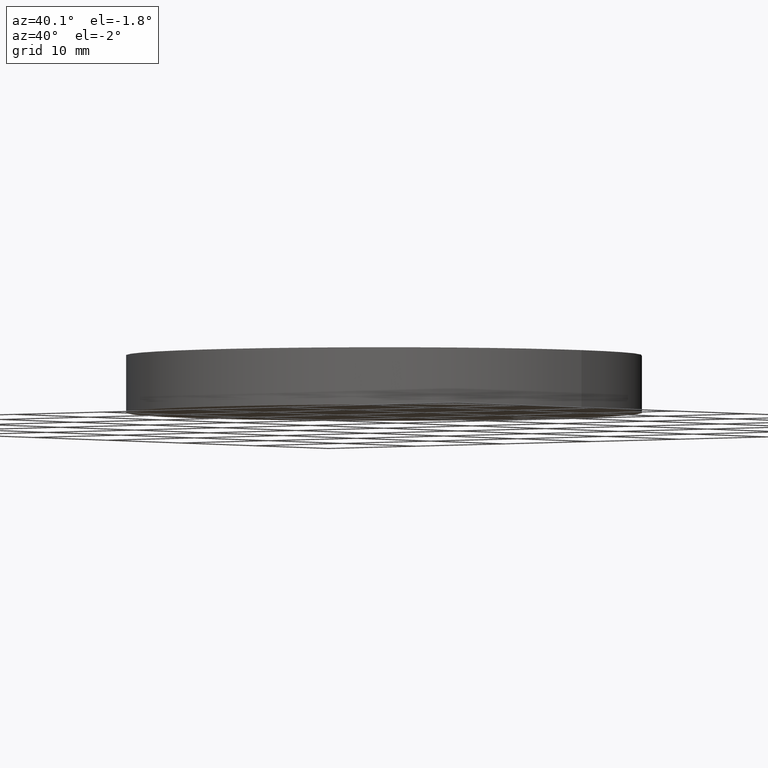
[diagram: clean part render]
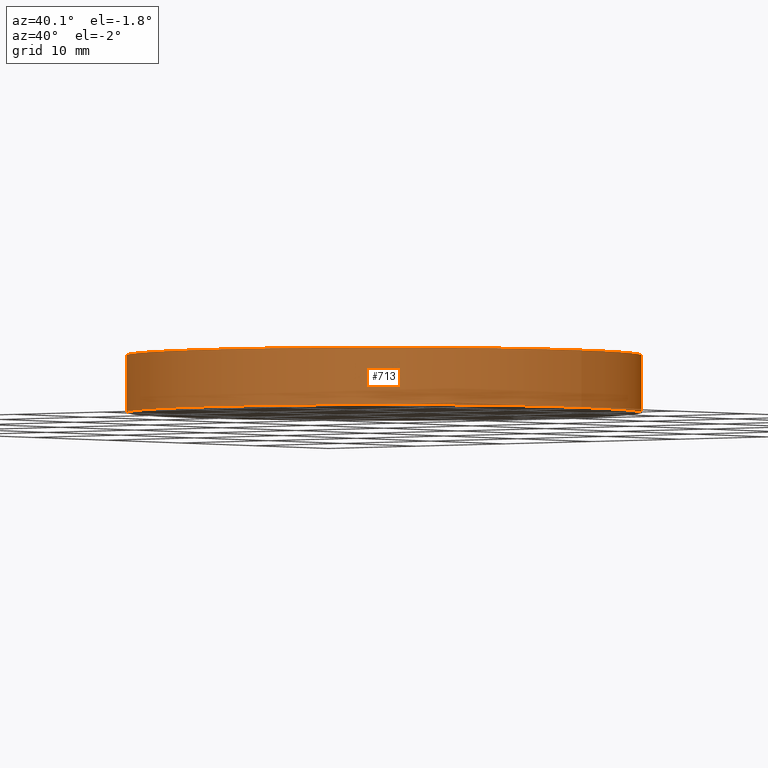
[diagram: same view with one face highlighted and labeled with its STEP entity id]
A machine part, auxiliary view. The second image highlights one B-rep face of the part: STEP entity #713.
In plain terms, the highlighted cylindrical surface (bore or boss wall) has radius 22.5 mm, axis along (0, 0, -1).
Its self-contained STEP definition (entity closure, byte-faithful):
#44=FACE_OUTER_BOUND('',#90,.T.);
#90=EDGE_LOOP('',(#477,#478,#479,#480));
#147=LINE('',#1144,#194);
#194=VECTOR('',#889,22.5);
#242=CIRCLE('',#776,22.5);
#243=CIRCLE('',#777,22.5);
#300=VERTEX_POINT('',#1141);
#301=VERTEX_POINT('',#1143);
#371=EDGE_CURVE('',#300,#300,#242,.T.);
#372=EDGE_CURVE('',#300,#301,#147,.T.);
#373=EDGE_CURVE('',#301,#301,#243,.T.);
#477=ORIENTED_EDGE('',*,*,#371,.F.);
#478=ORIENTED_EDGE('',*,*,#372,.T.);
#479=ORIENTED_EDGE('',*,*,#373,.F.);
#480=ORIENTED_EDGE('',*,*,#372,.F.);
#684=CYLINDRICAL_SURFACE('',#775,22.5);
#713=ADVANCED_FACE('',(#44),#684,.T.);
#775=AXIS2_PLACEMENT_3D('',#1140,#885,#886);
#776=AXIS2_PLACEMENT_3D('',#1142,#887,#888);
#777=AXIS2_PLACEMENT_3D('',#1145,#890,#891);
#885=DIRECTION('center_axis',(0.,0.,-1.));
#886=DIRECTION('ref_axis',(-1.,0.,0.));
#887=DIRECTION('center_axis',(0.,0.,1.));
#888=DIRECTION('ref_axis',(-1.,0.,0.));
#889=DIRECTION('',(0.,0.,-1.));
#890=DIRECTION('center_axis',(0.,0.,-1.));
#891=DIRECTION('ref_axis',(-1.,0.,0.));
#1140=CARTESIAN_POINT('Origin',(28.0503773553956,-9.5249996215105,0.));
#1141=CARTESIAN_POINT('',(50.5503773553956,-9.5249996215105,0.));
#1142=CARTESIAN_POINT('Origin',(28.0503773553956,-9.5249996215105,0.));
#1143=CARTESIAN_POINT('',(50.5503773553956,-9.5249996215105,-5.));
#1144=CARTESIAN_POINT('',(50.5503773553956,-9.5249996215105,0.));
#1145=CARTESIAN_POINT('Origin',(28.0503773553956,-9.5249996215105,-5.));